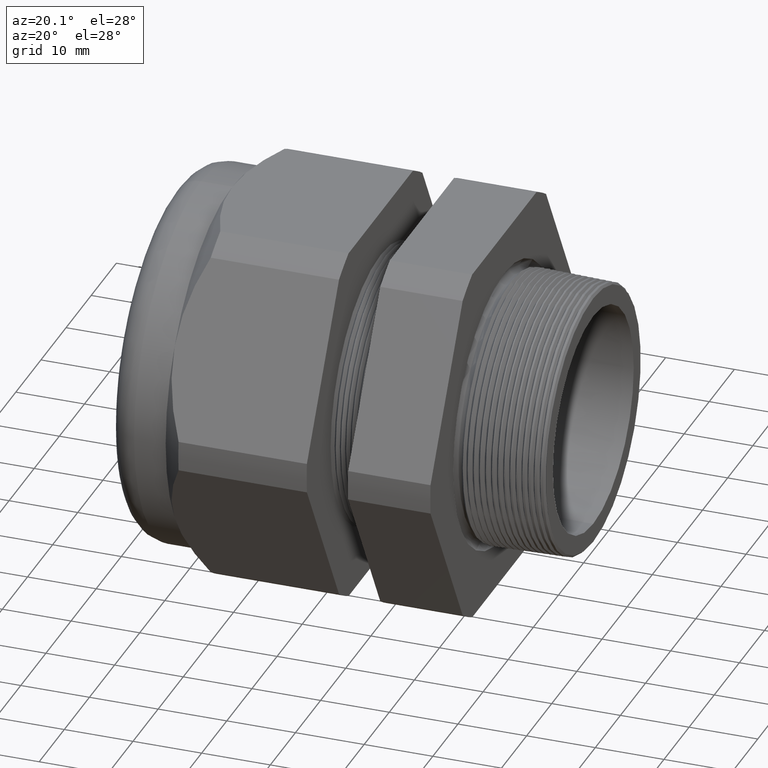
[diagram: clean part render]
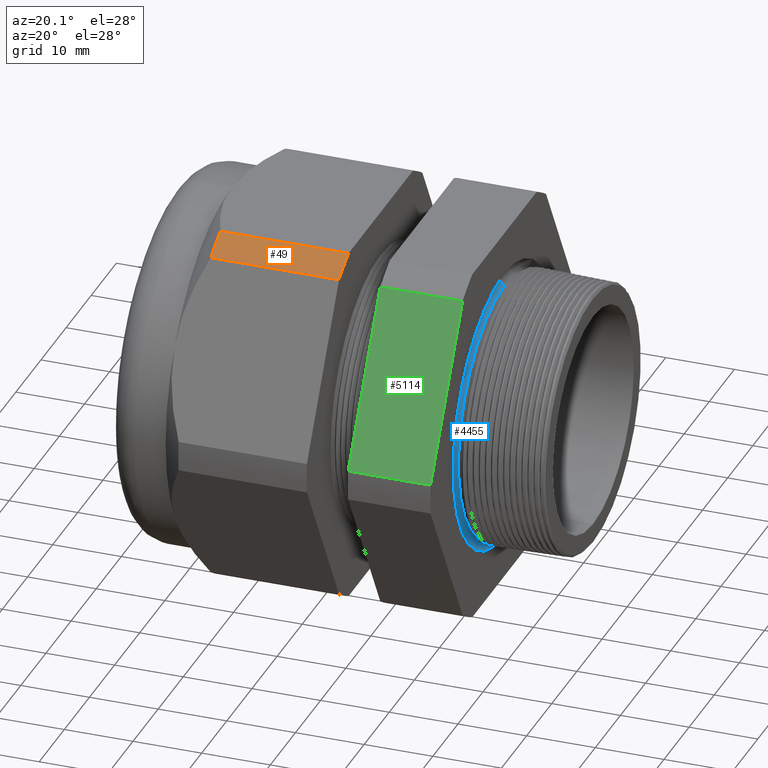
[diagram: same view with three faces highlighted in distinct colors, each labeled with its STEP entity id]
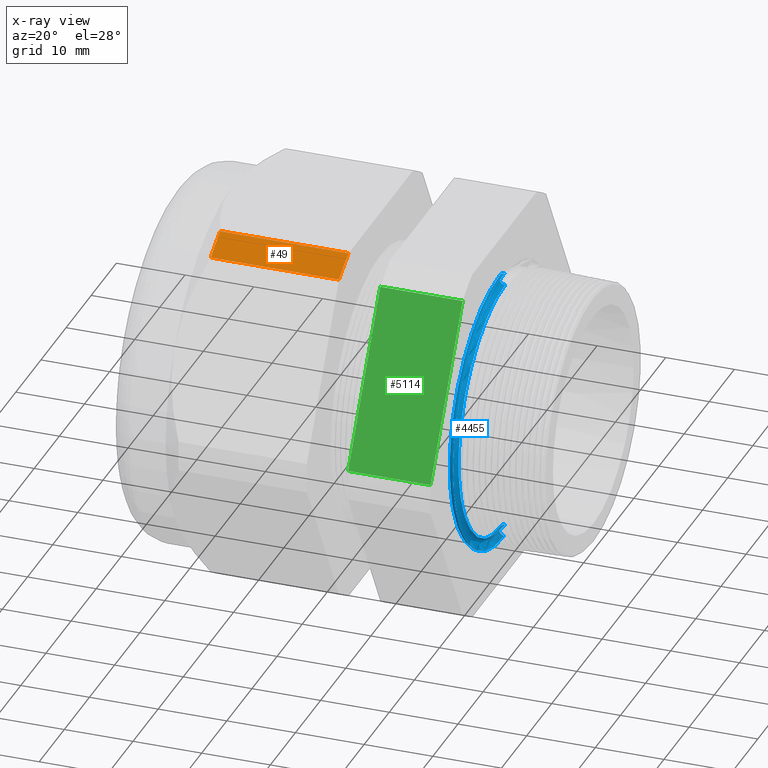
[diagram: x-ray of the same camera — body ghosted, the three highlighted faces saturated]
A machine part, auxiliary view with three faces highlighted in distinct colors.
The next image is the same camera in x-ray (body ghosted, the three faces saturated) — at least one of them is partly hidden behind the body in this view.
Their STEP definitions:

[orange] entity #49 — the highlighted cylindrical surface (partial cylindrical patch) has radius 29.4627 mm, axis along (-1, 0, 0).
#44 = EDGE_LOOP ( 'NONE', ( #5315, #5282, #5286, #5253 ) ) ;
#49 = ADVANCED_FACE ( 'NONE', ( #620 ), #619, .T. ) ;
#62 = VERTEX_POINT ( 'NONE', #662 ) ;
#72 = EDGE_CURVE ( 'NONE', #73, #62, #692, .T. ) ;
#73 = VERTEX_POINT ( 'NONE', #688 ) ;
#615 = DIRECTION ( 'NONE',  ( 0.0000000000000000000, 0.0000000000000000000, 1.000000000000000000 ) ) ;
#616 = DIRECTION ( 'NONE',  ( -1.000000000000000000, 0.0000000000000000000, 0.0000000000000000000 ) ) ;
#617 = CARTESIAN_POINT ( 'NONE',  ( 0.2000000000000000400, 0.0000000000000000000, 0.0000000000000000000 ) ) ;
#618 = AXIS2_PLACEMENT_3D ( 'NONE', #617, #616, #615 ) ;
#619 = CYLINDRICAL_SURFACE ( 'NONE', #618, 1.159950000000000000 ) ;
#620 = FACE_OUTER_BOUND ( 'NONE', #44, .T. ) ;
#662 = CARTESIAN_POINT ( 'NONE',  ( -1.754342000000000300, -0.6532729870224187600, 0.9584979952648864400 ) ) ;
#688 = CARTESIAN_POINT ( 'NONE',  ( -1.018802799999999800, -0.6532729870224188700, 0.9584979952648866600 ) ) ;
#689 = DIRECTION ( 'NONE',  ( -1.000000000000000000, 0.0000000000000000000, 0.0000000000000000000 ) ) ;
#690 = VECTOR ( 'NONE', #689, 39.37007874015748100 ) ;
#691 = CARTESIAN_POINT ( 'NONE',  ( 0.2000000000000000400, -0.6532729870224188700, 0.9584979952648866600 ) ) ;
#692 = LINE ( 'NONE', #691, #690 ) ;
#3533 = DIRECTION ( 'NONE',  ( 0.0000000000000000000, 0.0000000000000000000, -1.000000000000000000 ) ) ;
#3534 = DIRECTION ( 'NONE',  ( 1.000000000000000000, 0.0000000000000000000, 0.0000000000000000000 ) ) ;
#3535 = CARTESIAN_POINT ( 'NONE',  ( -1.018802799999999800, 0.0000000000000000000, 0.0000000000000000000 ) ) ;
#3536 = AXIS2_PLACEMENT_3D ( 'NONE', #3535, #3534, #3533 ) ;
#3537 = CIRCLE ( 'NONE', #3536, 1.159950000000000000 ) ;
#3637 = DIRECTION ( 'NONE',  ( 0.0000000000000000000, 0.0000000000000000000, -1.000000000000000000 ) ) ;
#3638 = DIRECTION ( 'NONE',  ( 1.000000000000000000, 0.0000000000000000000, 0.0000000000000000000 ) ) ;
#3639 = CARTESIAN_POINT ( 'NONE',  ( -1.754342000000000300, 0.0000000000000000000, 0.0000000000000000000 ) ) ;
#3640 = AXIS2_PLACEMENT_3D ( 'NONE', #3639, #3638, #3637 ) ;
#3641 = CIRCLE ( 'NONE', #3640, 1.159950000000000000 ) ;
#3643 = CARTESIAN_POINT ( 'NONE',  ( -1.754342000000000300, -0.5034471198646390800, 1.044999999999999900 ) ) ;
#3701 = DIRECTION ( 'NONE',  ( -1.000000000000000000, 0.0000000000000000000, 0.0000000000000000000 ) ) ;
#3702 = VECTOR ( 'NONE', #3701, 39.37007874015748100 ) ;
#3703 = CARTESIAN_POINT ( 'NONE',  ( 0.2000000000000000400, -0.5034471198646390800, 1.044999999999999900 ) ) ;
#3704 = LINE ( 'NONE', #3703, #3702 ) ;
#3705 = CARTESIAN_POINT ( 'NONE',  ( -1.018802799999999800, -0.5034471198646390800, 1.044999999999999900 ) ) ;
#5236 = EDGE_CURVE ( 'NONE', #5314, #73, #3537, .T. ) ;
#5253 = ORIENTED_EDGE ( 'NONE', *, *, #5236, .F. ) ;
#5280 = VERTEX_POINT ( 'NONE', #3643 ) ;
#5281 = EDGE_CURVE ( 'NONE', #5280, #62, #3641, .T. ) ;
#5282 = ORIENTED_EDGE ( 'NONE', *, *, #5281, .T. ) ;
#5286 = ORIENTED_EDGE ( 'NONE', *, *, #72, .F. ) ;
#5314 = VERTEX_POINT ( 'NONE', #3705 ) ;
#5315 = ORIENTED_EDGE ( 'NONE', *, *, #5316, .T. ) ;
#5316 = EDGE_CURVE ( 'NONE', #5314, #5280, #3704, .T. ) ;

[blue] entity #4455 — the highlighted toroidal blend (fillet) surface has major radius 19.4676 mm and minor (blend) radius 0.889 mm.
#1994 = CARTESIAN_POINT ( 'NONE',  ( -0.3049999999999999400, 8.957548532017220700E-017, 0.7314393454711850500 ) ) ;
#2031 = CARTESIAN_POINT ( 'NONE',  ( -0.3049999999999999400, 0.0000000000000000000, -0.7314393454711850500 ) ) ;
#2133 = CARTESIAN_POINT ( 'NONE',  ( -0.3049999999999999400, 0.0000000000000000000, 0.0000000000000000000 ) ) ;
#2155 = FACE_OUTER_BOUND ( 'NONE', #5196, .T. ) ;
#2193 = DIRECTION ( 'NONE',  ( 0.0000000000000000000, 0.0000000000000000000, -1.000000000000000000 ) ) ;
#2194 = DIRECTION ( 'NONE',  ( 1.000000000000000000, 0.0000000000000000000, 0.0000000000000000000 ) ) ;
#2195 = AXIS2_PLACEMENT_3D ( 'NONE', #2133, #2194, #2193 ) ;
#2196 = TOROIDAL_SURFACE ( 'NONE', #2195, 0.7664393454711850900, 0.03499999999999997600 ) ;
#3434 = DIRECTION ( 'NONE',  ( 0.0000000000000000000, 1.224646799147352500E-016, 1.000000000000000000 ) ) ;
#3435 = DIRECTION ( 'NONE',  ( 0.0000000000000000000, 1.000000000000000000, -1.224646799147353200E-016 ) ) ;
#3436 = CARTESIAN_POINT ( 'NONE',  ( -0.3049999999999999400, 9.386174911718792200E-017, 0.7664393454711850900 ) ) ;
#3437 = AXIS2_PLACEMENT_3D ( 'NONE', #3436, #3435, #3434 ) ;
#3438 = CIRCLE ( 'NONE', #3437, 0.03500000000000003800 ) ;
#3439 = CARTESIAN_POINT ( 'NONE',  ( -0.3100000000000000000, 9.810405007208754400E-017, 0.8010803616225625800 ) ) ;
#3445 = DIRECTION ( 'NONE',  ( 0.0000000000000000000, 0.0000000000000000000, -1.000000000000000000 ) ) ;
#3446 = DIRECTION ( 'NONE',  ( 1.000000000000000000, 0.0000000000000000000, 0.0000000000000000000 ) ) ;
#3447 = AXIS2_PLACEMENT_3D ( 'NONE', #3452, #3446, #3445 ) ;
#3448 = CIRCLE ( 'NONE', #3447, 0.8010803616225625800 ) ;
#3452 = CARTESIAN_POINT ( 'NONE',  ( -0.3100000000000000000, 0.0000000000000000000, 0.0000000000000000000 ) ) ;
#3469 = DIRECTION ( 'NONE',  ( 0.0000000000000000000, 0.0000000000000000000, -1.000000000000000000 ) ) ;
#3470 = DIRECTION ( 'NONE',  ( 1.000000000000000000, 0.0000000000000000000, 0.0000000000000000000 ) ) ;
#3471 = CARTESIAN_POINT ( 'NONE',  ( -0.3049999999999999400, 0.0000000000000000000, 0.0000000000000000000 ) ) ;
#3472 = AXIS2_PLACEMENT_3D ( 'NONE', #3471, #3470, #3469 ) ;
#3473 = CIRCLE ( 'NONE', #3472, 0.7314393454711850500 ) ;
#3474 = DIRECTION ( 'NONE',  ( 0.0000000000000000000, 0.0000000000000000000, -1.000000000000000000 ) ) ;
#3475 = DIRECTION ( 'NONE',  ( 0.0000000000000000000, -1.000000000000000000, 0.0000000000000000000 ) ) ;
#3476 = CARTESIAN_POINT ( 'NONE',  ( -0.3049999999999999400, 0.0000000000000000000, -0.7664393454711850900 ) ) ;
#3477 = AXIS2_PLACEMENT_3D ( 'NONE', #3476, #3475, #3474 ) ;
#3478 = CIRCLE ( 'NONE', #3477, 0.03500000000000003800 ) ;
#3490 = CARTESIAN_POINT ( 'NONE',  ( -0.3100000000000000000, 0.0000000000000000000, -0.8010803616225625800 ) ) ;
#4382 = VERTEX_POINT ( 'NONE', #1994 ) ;
#4401 = VERTEX_POINT ( 'NONE', #2031 ) ;
#4453 = ORIENTED_EDGE ( 'NONE', *, *, #5200, .F. ) ;
#4455 = ADVANCED_FACE ( 'NONE', ( #2155 ), #2196, .F. ) ;
#5174 = ORIENTED_EDGE ( 'NONE', *, *, #5176, .T. ) ;
#5176 = EDGE_CURVE ( 'NONE', #5180, #5229, #3448, .T. ) ;
#5180 = VERTEX_POINT ( 'NONE', #3439 ) ;
#5185 = EDGE_CURVE ( 'NONE', #4382, #5180, #3438, .T. ) ;
#5187 = ORIENTED_EDGE ( 'NONE', *, *, #5185, .T. ) ;
#5196 = EDGE_LOOP ( 'NONE', ( #4453, #5187, #5174, #5202 ) ) ;
#5199 = EDGE_CURVE ( 'NONE', #4401, #5229, #3478, .T. ) ;
#5200 = EDGE_CURVE ( 'NONE', #4382, #4401, #3473, .T. ) ;
#5202 = ORIENTED_EDGE ( 'NONE', *, *, #5199, .F. ) ;
#5229 = VERTEX_POINT ( 'NONE', #3490 ) ;

[green] entity #5114 — the highlighted planar face has unit normal (0, -0.866, 0.5).
#2888 = CARTESIAN_POINT ( 'NONE',  ( -0.3100000000000000000, -0.6532729870224188700, 0.9584979952648866600 ) ) ;
#2940 = DIRECTION ( 'NONE',  ( 0.0000000000000000000, -0.4999999999999996100, -0.8660254037844388200 ) ) ;
#2941 = VECTOR ( 'NONE', #2940, 39.37007874015748900 ) ;
#2942 = CARTESIAN_POINT ( 'NONE',  ( -0.3100000000000000000, -0.3824965469547395000, 1.427496546954737600 ) ) ;
#2943 = LINE ( 'NONE', #2942, #2941 ) ;
#2944 = CARTESIAN_POINT ( 'NONE',  ( -0.3100000000000000000, -1.156720106887058100, 0.08650200473511256100 ) ) ;
#3292 = DIRECTION ( 'NONE',  ( -1.000000000000000000, 0.0000000000000000000, 0.0000000000000000000 ) ) ;
#3293 = VECTOR ( 'NONE', #3292, 39.37007874015748100 ) ;
#3294 = CARTESIAN_POINT ( 'NONE',  ( 0.2000000000000000400, -1.156720106887058100, 0.08650200473511256100 ) ) ;
#3295 = LINE ( 'NONE', #3294, #3293 ) ;
#3301 = DIRECTION ( 'NONE',  ( -1.000000000000000000, 0.0000000000000000000, 0.0000000000000000000 ) ) ;
#3302 = VECTOR ( 'NONE', #3301, 39.37007874015748100 ) ;
#3303 = CARTESIAN_POINT ( 'NONE',  ( 0.2000000000000000400, -0.6532729870224188700, 0.9584979952648866600 ) ) ;
#3304 = LINE ( 'NONE', #3303, #3302 ) ;
#3305 = DIRECTION ( 'NONE',  ( 0.0000000000000000000, -0.4999999999999996100, -0.8660254037844388200 ) ) ;
#3306 = DIRECTION ( 'NONE',  ( 0.0000000000000000000, -0.8660254037844388200, 0.4999999999999996100 ) ) ;
#3307 = CARTESIAN_POINT ( 'NONE',  ( 0.2000000000000000400, -1.156720106887057800, 0.08650200473511263100 ) ) ;
#3308 = AXIS2_PLACEMENT_3D ( 'NONE', #3307, #3306, #3305 ) ;
#3309 = PLANE ( 'NONE',  #3308 ) ;
#3314 = FACE_OUTER_BOUND ( 'NONE', #5087, .T. ) ;
#3685 = DIRECTION ( 'NONE',  ( 0.0000000000000000000, 0.4999999999999996100, 0.8660254037844388200 ) ) ;
#3686 = VECTOR ( 'NONE', #3685, 39.37007874015748900 ) ;
#3687 = CARTESIAN_POINT ( 'NONE',  ( -0.7824399999999999100, -0.3824965469547395000, 1.427496546954737600 ) ) ;
#3692 = LINE ( 'NONE', #3687, #3686 ) ;
#3716 = CARTESIAN_POINT ( 'NONE',  ( -0.7824399999999999100, -0.6532729870224188700, 0.9584979952648866600 ) ) ;
#3764 = CARTESIAN_POINT ( 'NONE',  ( -0.7824399999999999100, -1.156720106887058100, 0.08650200473511256100 ) ) ;
#4867 = VERTEX_POINT ( 'NONE', #2888 ) ;
#4872 = VERTEX_POINT ( 'NONE', #2944 ) ;
#4873 = EDGE_CURVE ( 'NONE', #4867, #4872, #2943, .T. ) ;
#5045 = ORIENTED_EDGE ( 'NONE', *, *, #5074, .F. ) ;
#5052 = ORIENTED_EDGE ( 'NONE', *, *, #4873, .F. ) ;
#5074 = EDGE_CURVE ( 'NONE', #4872, #5350, #3295, .T. ) ;
#5087 = EDGE_LOOP ( 'NONE', ( #5093, #5091, #5045, #5052 ) ) ;
#5091 = ORIENTED_EDGE ( 'NONE', *, *, #5327, .F. ) ;
#5093 = ORIENTED_EDGE ( 'NONE', *, *, #5117, .T. ) ;
#5114 = ADVANCED_FACE ( 'NONE', ( #3314 ), #3309, .T. ) ;
#5117 = EDGE_CURVE ( 'NONE', #4867, #5342, #3304, .T. ) ;
#5327 = EDGE_CURVE ( 'NONE', #5350, #5342, #3692, .T. ) ;
#5342 = VERTEX_POINT ( 'NONE', #3716 ) ;
#5350 = VERTEX_POINT ( 'NONE', #3764 ) ;